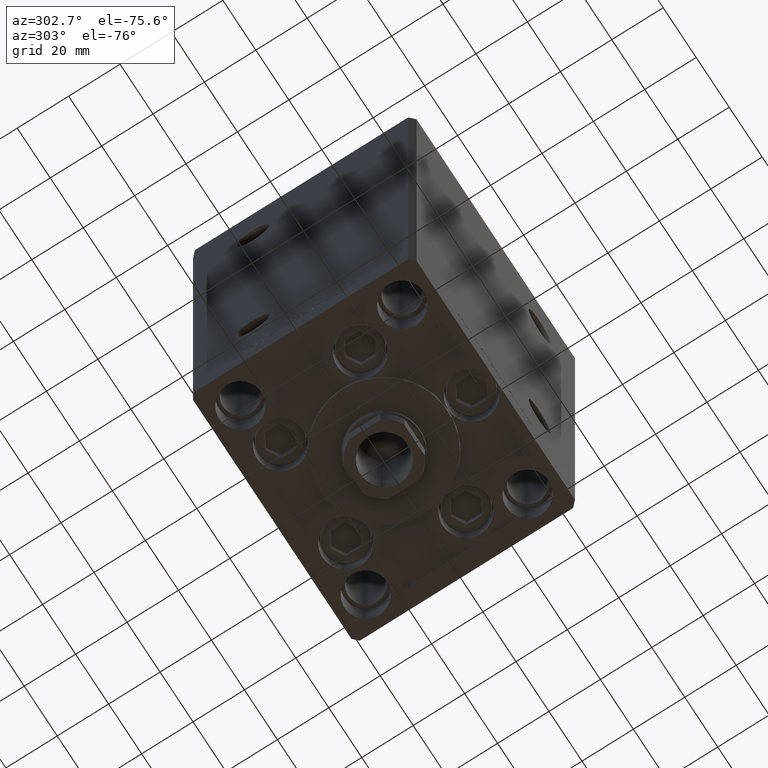
[diagram: clean part render]
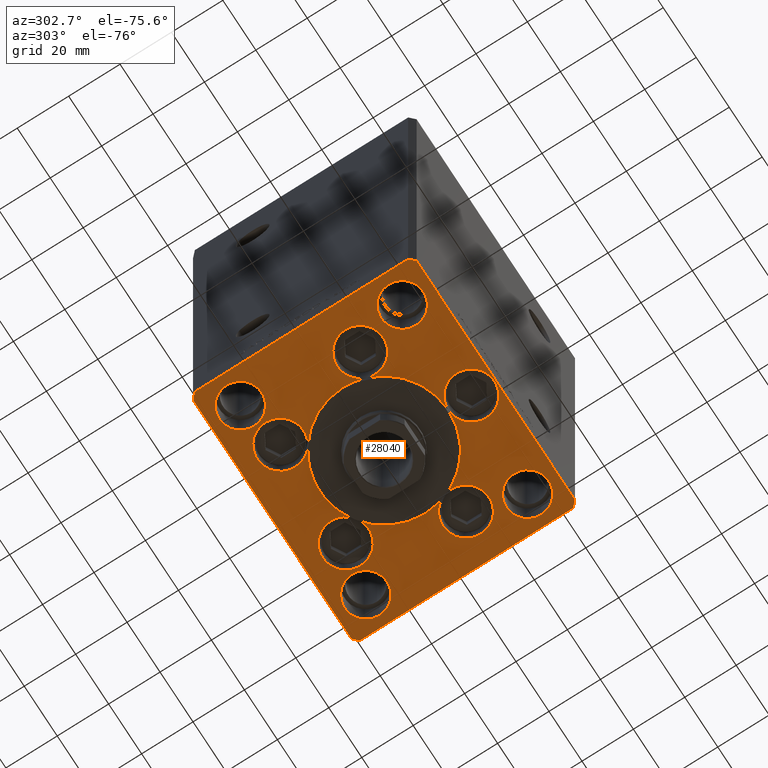
[diagram: same view with one face highlighted and labeled with its STEP entity id]
A machine part, auxiliary view. The second image highlights one B-rep face of the part: STEP entity #28040.
In plain terms, the highlighted planar face has unit normal (0, 0, -1).
Its self-contained STEP definition (entity closure, byte-faithful):
#228 = CARTESIAN_POINT ( 'NONE',  ( -50.00000000000000711, 41.49999999999999289, 0.000000000000000000 ) ) ;
#287 = VERTEX_POINT ( 'NONE', #18116 ) ;
#293 = CIRCLE ( 'NONE', #21447, 8.999999999999998224 ) ;
#330 = AXIS2_PLACEMENT_3D ( 'NONE', #29958, #20427, #39982 ) ;
#395 = AXIS2_PLACEMENT_3D ( 'NONE', #5434, #32104, #20926 ) ;
#409 = DIRECTION ( 'NONE',  ( 0.000000000000000000, 0.000000000000000000, 1.000000000000000000 ) ) ;
#425 = AXIS2_PLACEMENT_3D ( 'NONE', #39524, #17166, #43582 ) ;
#472 = AXIS2_PLACEMENT_3D ( 'NONE', #49892, #30829, #35147 ) ;
#539 = ORIENTED_EDGE ( 'NONE', *, *, #16660, .T. ) ;
#650 = CIRCLE ( 'NONE', #36305, 9.000000000000001776 ) ;
#720 = CARTESIAN_POINT ( 'NONE',  ( 50.00000000000000000, -41.49999999999992895, 0.000000000000000000 ) ) ;
#798 = EDGE_CURVE ( 'NONE', #15097, #5583, #650, .T. ) ;
#996 = CARTESIAN_POINT ( 'NONE',  ( -38.00000000000000000, 31.50000000000000000, 0.000000000000000000 ) ) ;
#1111 = CARTESIAN_POINT ( 'NONE',  ( 14.57402977045128623, 20.31249999999998579, 0.000000000000000000 ) ) ;
#1197 = VERTEX_POINT ( 'NONE', #1882 ) ;
#1245 = CARTESIAN_POINT ( 'NONE',  ( -48.00000000000000000, 43.49999999999997158, 0.000000000000000000 ) ) ;
#1278 = FACE_BOUND ( 'NONE', #35104, .T. ) ;
#1734 = DIRECTION ( 'NONE',  ( 0.000000000000000000, 0.000000000000000000, 1.000000000000000000 ) ) ;
#1762 = CARTESIAN_POINT ( 'NONE',  ( -25.00000000000000000, -6.938893903907228378E-15, 0.000000000000000000 ) ) ;
#1839 = ORIENTED_EDGE ( 'NONE', *, *, #18612, .F. ) ;
#1882 = CARTESIAN_POINT ( 'NONE',  ( 47.99999999999999289, 43.50000000000000000, 0.000000000000000000 ) ) ;
#1955 = CARTESIAN_POINT ( 'NONE',  ( 38.00000000000000711, -31.50000000000000711, 0.000000000000000000 ) ) ;
#2171 = DIRECTION ( 'NONE',  ( 1.000000000000000000, 0.000000000000000000, 0.000000000000000000 ) ) ;
#2518 = DIRECTION ( 'NONE',  ( 1.000000000000000000, 0.000000000000000000, 0.000000000000000000 ) ) ;
#2654 = CARTESIAN_POINT ( 'NONE',  ( -50.00000000000000000, -41.50000000000004263, 0.000000000000000000 ) ) ;
#2740 = AXIS2_PLACEMENT_3D ( 'NONE', #43446, #41129, #21819 ) ;
#2756 = ORIENTED_EDGE ( 'NONE', *, *, #18411, .T. ) ;
#2917 = VERTEX_POINT ( 'NONE', #2654 ) ;
#2969 = ORIENTED_EDGE ( 'NONE', *, *, #13932, .F. ) ;
#3465 = DIRECTION ( 'NONE',  ( 1.000000000000000000, 0.000000000000000000, 0.000000000000000000 ) ) ;
#3544 = DIRECTION ( 'NONE',  ( 0.000000000000000000, 0.000000000000000000, 1.000000000000000000 ) ) ;
#3600 = AXIS2_PLACEMENT_3D ( 'NONE', #20012, #8587, #39552 ) ;
#3870 = DIRECTION ( 'NONE',  ( 0.000000000000000000, 0.000000000000000000, 1.000000000000000000 ) ) ;
#3879 = CARTESIAN_POINT ( 'NONE',  ( 0.000000000000000000, -34.00000000000000000, 0.000000000000000000 ) ) ;
#4088 = EDGE_CURVE ( 'NONE', #46002, #6306, #35470, .T. ) ;
#4151 = CARTESIAN_POINT ( 'NONE',  ( -29.75000000000000000, 31.50000000000000000, 0.000000000000000000 ) ) ;
#4483 = EDGE_CURVE ( 'NONE', #6306, #9022, #42808, .T. ) ;
#4912 = EDGE_CURVE ( 'NONE', #36984, #43052, #26547, .T. ) ;
#5033 = CARTESIAN_POINT ( 'NONE',  ( -10.82068048781375147, 27.62499999999998934, 0.000000000000000000 ) ) ;
#5434 = CARTESIAN_POINT ( 'NONE',  ( 0.000000000000000000, -6.938893903907228378E-15, 0.000000000000000000 ) ) ;
#5576 = FACE_BOUND ( 'NONE', #35745, .T. ) ;
#5583 = VERTEX_POINT ( 'NONE', #18358 ) ;
#5611 = CARTESIAN_POINT ( 'NONE',  ( -29.75000000000000711, -31.50000000000000711, 0.000000000000000000 ) ) ;
#5638 = CARTESIAN_POINT ( 'NONE',  ( -50.00000000000000000, -41.50000000000004263, 0.000000000000000000 ) ) ;
#5688 = ORIENTED_EDGE ( 'NONE', *, *, #38407, .F. ) ;
#5814 = FACE_BOUND ( 'NONE', #26633, .T. ) ;
#6221 = DIRECTION ( 'NONE',  ( 0.000000000000000000, 0.000000000000000000, 1.000000000000000000 ) ) ;
#6306 = VERTEX_POINT ( 'NONE', #42102 ) ;
#6424 = DIRECTION ( 'NONE',  ( 1.000000000000000000, 1.156482317317871331E-15, 0.000000000000000000 ) ) ;
#6514 = ORIENTED_EDGE ( 'NONE', *, *, #18755, .F. ) ;
#6604 = CARTESIAN_POINT ( 'NONE',  ( -38.00000000000000000, 31.50000000000000000, 0.000000000000000000 ) ) ;
#6693 = EDGE_CURVE ( 'NONE', #5583, #28128, #15290, .T. ) ;
#6868 = VERTEX_POINT ( 'NONE', #42979 ) ;
#6901 = CIRCLE ( 'NONE', #10964, 8.999999999999998224 ) ;
#6918 = CARTESIAN_POINT ( 'NONE',  ( 19.82068048781374969, 27.62499999999998934, 0.000000000000000000 ) ) ;
#6952 = CARTESIAN_POINT ( 'NONE',  ( 50.00000000000000000, 41.50000000000000711, 0.000000000000000000 ) ) ;
#7017 = VECTOR ( 'NONE', #14902, 1000.000000000000114 ) ;
#7226 = DIRECTION ( 'NONE',  ( 1.000000000000000000, 0.000000000000000000, 0.000000000000000000 ) ) ;
#7528 = DIRECTION ( 'NONE',  ( 0.000000000000000000, 0.000000000000000000, 1.000000000000000000 ) ) ;
#7878 = VERTEX_POINT ( 'NONE', #39672 ) ;
#8587 = DIRECTION ( 'NONE',  ( 0.000000000000000000, 0.000000000000000000, 1.000000000000000000 ) ) ;
#8960 = DIRECTION ( 'NONE',  ( -1.000000000000000000, -2.891205793294678326E-16, 0.000000000000000000 ) ) ;
#9022 = VERTEX_POINT ( 'NONE', #1762 ) ;
#9218 = CIRCLE ( 'NONE', #46512, 8.250000000000000000 ) ;
#9323 = AXIS2_PLACEMENT_3D ( 'NONE', #20892, #36377, #13523 ) ;
#9473 = ORIENTED_EDGE ( 'NONE', *, *, #45252, .T. ) ;
#9573 = EDGE_CURVE ( 'NONE', #28128, #39621, #13786, .T. ) ;
#9990 = CIRCLE ( 'NONE', #18110, 25.00000000000000000 ) ;
#10092 = DIRECTION ( 'NONE',  ( 1.000000000000000000, 0.000000000000000000, 0.000000000000000000 ) ) ;
#10331 = CARTESIAN_POINT ( 'NONE',  ( 48.00000000000000711, -43.49999999999992184, 0.000000000000000000 ) ) ;
#10751 = AXIS2_PLACEMENT_3D ( 'NONE', #29308, #45578, #10796 ) ;
#10796 = DIRECTION ( 'NONE',  ( 1.000000000000000000, 0.000000000000000000, 0.000000000000000000 ) ) ;
#10897 = DIRECTION ( 'NONE',  ( 0.000000000000000000, 0.000000000000000000, 1.000000000000000000 ) ) ;
#10964 = AXIS2_PLACEMENT_3D ( 'NONE', #45901, #11116, #17732 ) ;
#11033 = VECTOR ( 'NONE', #15086, 999.9999999999998863 ) ;
#11116 = DIRECTION ( 'NONE',  ( 0.000000000000000000, 0.000000000000000000, 1.000000000000000000 ) ) ;
#11140 = VERTEX_POINT ( 'NONE', #4151 ) ;
#11346 = CIRCLE ( 'NONE', #44576, 8.249999999999992895 ) ;
#11558 = CIRCLE ( 'NONE', #20476, 9.000000000000001776 ) ;
#11581 = CARTESIAN_POINT ( 'NONE',  ( 0.000000000000000000, -34.00000000000000000, 0.000000000000000000 ) ) ;
#11642 = VECTOR ( 'NONE', #42882, 1000.000000000000000 ) ;
#11713 = DIRECTION ( 'NONE',  ( 0.000000000000000000, 0.000000000000000000, 1.000000000000000000 ) ) ;
#11786 = VERTEX_POINT ( 'NONE', #20948 ) ;
#12374 = ORIENTED_EDGE ( 'NONE', *, *, #28359, .T. ) ;
#12436 = AXIS2_PLACEMENT_3D ( 'NONE', #20111, #32272, #12988 ) ;
#12471 = CIRCLE ( 'NONE', #330, 8.250000000000000000 ) ;
#12584 = CIRCLE ( 'NONE', #45001, 8.249999999999992895 ) ;
#12708 = PLANE ( 'NONE',  #19132 ) ;
#12844 = ORIENTED_EDGE ( 'NONE', *, *, #25332, .F. ) ;
#12952 = DIRECTION ( 'NONE',  ( 1.000000000000000000, 0.000000000000000000, 0.000000000000000000 ) ) ;
#12974 = VERTEX_POINT ( 'NONE', #36069 ) ;
#12988 = DIRECTION ( 'NONE',  ( 1.000000000000000000, 0.000000000000000000, 0.000000000000000000 ) ) ;
#13088 = VERTEX_POINT ( 'NONE', #46203 ) ;
#13306 = CIRCLE ( 'NONE', #31963, 8.250000000000000000 ) ;
#13503 = CARTESIAN_POINT ( 'NONE',  ( 47.99999999999999289, 43.50000000000000000, 0.000000000000000000 ) ) ;
#13523 = DIRECTION ( 'NONE',  ( 1.000000000000000000, 0.000000000000000000, 0.000000000000000000 ) ) ;
#13786 = CIRCLE ( 'NONE', #42186, 9.000000000000000000 ) ;
#13796 = CARTESIAN_POINT ( 'NONE',  ( -48.00000000000000000, 43.49999999999997158, 0.000000000000000000 ) ) ;
#13919 = VERTEX_POINT ( 'NONE', #39838 ) ;
#13932 = EDGE_CURVE ( 'NONE', #7878, #11140, #38352, .T. ) ;
#14634 = CARTESIAN_POINT ( 'NONE',  ( 50.00000000000000000, 41.50000000000000711, 0.000000000000000000 ) ) ;
#14752 = CARTESIAN_POINT ( 'NONE',  ( -32.05550741379015989, -11.33333333333332860, 0.000000000000000000 ) ) ;
#14778 = EDGE_CURVE ( 'NONE', #11140, #7878, #9218, .T. ) ;
#14902 = DIRECTION ( 'NONE',  ( 0.7071067811865474617, 0.7071067811865474617, 0.000000000000000000 ) ) ;
#15086 = DIRECTION ( 'NONE',  ( -0.7071067811865512365, 0.7071067811865439090, 0.000000000000000000 ) ) ;
#15093 = VERTEX_POINT ( 'NONE', #15682 ) ;
#15097 = VERTEX_POINT ( 'NONE', #49707 ) ;
#15148 = CIRCLE ( 'NONE', #43513, 9.000000000000001776 ) ;
#15279 = ORIENTED_EDGE ( 'NONE', *, *, #23577, .F. ) ;
#15290 = CIRCLE ( 'NONE', #27459, 25.00000000000000000 ) ;
#15682 = CARTESIAN_POINT ( 'NONE',  ( 41.05550741379015989, -11.33333333333332860, 0.000000000000000000 ) ) ;
#16173 = AXIS2_PLACEMENT_3D ( 'NONE', #20787, #36266, #24839 ) ;
#16660 = EDGE_CURVE ( 'NONE', #1197, #26510, #36853, .T. ) ;
#16811 = EDGE_CURVE ( 'NONE', #24124, #15093, #29510, .T. ) ;
#17166 = DIRECTION ( 'NONE',  ( 0.000000000000000000, 0.000000000000000000, 1.000000000000000000 ) ) ;
#17263 = FACE_BOUND ( 'NONE', #19628, .T. ) ;
#17283 = VECTOR ( 'NONE', #6424, 1000.000000000000000 ) ;
#17366 = VECTOR ( 'NONE', #8960, 1000.000000000000000 ) ;
#17455 = DIRECTION ( 'NONE',  ( 1.000000000000000000, 0.000000000000000000, 0.000000000000000000 ) ) ;
#17636 = AXIS2_PLACEMENT_3D ( 'NONE', #23191, #19127, #30272 ) ;
#17732 = DIRECTION ( 'NONE',  ( 1.000000000000000000, 0.000000000000000000, 0.000000000000000000 ) ) ;
#17801 = VERTEX_POINT ( 'NONE', #24932 ) ;
#18110 = AXIS2_PLACEMENT_3D ( 'NONE', #21467, #25765, #2171 ) ;
#18116 = CARTESIAN_POINT ( 'NONE',  ( 29.75000000000001066, -31.50000000000000711, 0.000000000000000000 ) ) ;
#18272 = CARTESIAN_POINT ( 'NONE',  ( 0.000000000000000000, -34.00000000000000000, 0.000000000000000000 ) ) ;
#18291 = AXIS2_PLACEMENT_3D ( 'NONE', #3879, #28226, #27975 ) ;
#18358 = CARTESIAN_POINT ( 'NONE',  ( -23.57022603955158502, -8.333333333333332149, 0.000000000000000000 ) ) ;
#18411 = EDGE_CURVE ( 'NONE', #32588, #21257, #23086, .T. ) ;
#18612 = EDGE_CURVE ( 'NONE', #43052, #31975, #293, .T. ) ;
#18631 = ORIENTED_EDGE ( 'NONE', *, *, #33688, .F. ) ;
#18755 = EDGE_CURVE ( 'NONE', #24828, #17801, #21336, .T. ) ;
#19127 = DIRECTION ( 'NONE',  ( 0.000000000000000000, 0.000000000000000000, 1.000000000000000000 ) ) ;
#19132 = AXIS2_PLACEMENT_3D ( 'NONE', #24626, #36049, #12952 ) ;
#19239 = DIRECTION ( 'NONE',  ( 1.000000000000000000, 0.000000000000000000, 0.000000000000000000 ) ) ;
#19314 = ORIENTED_EDGE ( 'NONE', *, *, #4912, .F. ) ;
#19615 = EDGE_CURVE ( 'NONE', #13088, #36035, #12471, .T. ) ;
#19628 = EDGE_LOOP ( 'NONE', ( #12844, #22593 ) ) ;
#20012 = CARTESIAN_POINT ( 'NONE',  ( 32.05550741379015989, -11.33333333333332860, 0.000000000000000000 ) ) ;
#20111 = CARTESIAN_POINT ( 'NONE',  ( 38.00000000000000000, 31.50000000000000000, 0.000000000000000000 ) ) ;
#20348 = CARTESIAN_POINT ( 'NONE',  ( 46.25000000000000000, -31.50000000000000711, 0.000000000000000000 ) ) ;
#20427 = DIRECTION ( 'NONE',  ( 0.000000000000000000, 0.000000000000000000, 1.000000000000000000 ) ) ;
#20476 = AXIS2_PLACEMENT_3D ( 'NONE', #26255, #41756, #33870 ) ;
#20573 = CIRCLE ( 'NONE', #2740, 8.999999999999998224 ) ;
#20577 = VERTEX_POINT ( 'NONE', #44533 ) ;
#20715 = EDGE_CURVE ( 'NONE', #17801, #24828, #13306, .T. ) ;
#20787 = CARTESIAN_POINT ( 'NONE',  ( -32.05550741379015989, -11.33333333333332860, 0.000000000000000000 ) ) ;
#20892 = CARTESIAN_POINT ( 'NONE',  ( -19.82068048781374969, 27.62499999999998934, 0.000000000000000000 ) ) ;
#20926 = DIRECTION ( 'NONE',  ( 1.000000000000000000, 0.000000000000000000, 0.000000000000000000 ) ) ;
#20948 = CARTESIAN_POINT ( 'NONE',  ( 9.000000000000000000, -34.00000000000000000, 0.000000000000000000 ) ) ;
#21257 = VERTEX_POINT ( 'NONE', #14634 ) ;
#21336 = CIRCLE ( 'NONE', #12436, 8.250000000000000000 ) ;
#21447 = AXIS2_PLACEMENT_3D ( 'NONE', #6918, #3870, #50078 ) ;
#21467 = CARTESIAN_POINT ( 'NONE',  ( 0.000000000000000000, -6.938893903907228378E-15, 0.000000000000000000 ) ) ;
#21574 = ORIENTED_EDGE ( 'NONE', *, *, #6693, .F. ) ;
#21781 = EDGE_CURVE ( 'NONE', #6306, #37820, #43349, .T. ) ;
#21786 = ORIENTED_EDGE ( 'NONE', *, *, #29208, .F. ) ;
#21819 = DIRECTION ( 'NONE',  ( 1.000000000000000000, 0.000000000000000000, 0.000000000000000000 ) ) ;
#22240 = ORIENTED_EDGE ( 'NONE', *, *, #16811, .F. ) ;
#22295 = EDGE_CURVE ( 'NONE', #34622, #287, #12584, .T. ) ;
#22593 = ORIENTED_EDGE ( 'NONE', *, *, #19615, .F. ) ;
#22955 = LINE ( 'NONE', #6952, #11033 ) ;
#23047 = DIRECTION ( 'NONE',  ( 0.000000000000000000, 0.000000000000000000, 1.000000000000000000 ) ) ;
#23086 = LINE ( 'NONE', #720, #11642 ) ;
#23191 = CARTESIAN_POINT ( 'NONE',  ( 0.000000000000000000, -6.938893903907228378E-15, 0.000000000000000000 ) ) ;
#23197 = CIRCLE ( 'NONE', #27244, 9.000000000000000000 ) ;
#23577 = EDGE_CURVE ( 'NONE', #15093, #13919, #48300, .T. ) ;
#23751 = ORIENTED_EDGE ( 'NONE', *, *, #21781, .F. ) ;
#23881 = VECTOR ( 'NONE', #28975, 1000.000000000000000 ) ;
#24124 = VERTEX_POINT ( 'NONE', #32021 ) ;
#24130 = CARTESIAN_POINT ( 'NONE',  ( -19.82068048781374969, 27.62499999999998934, 0.000000000000000000 ) ) ;
#24182 = CARTESIAN_POINT ( 'NONE',  ( -50.00000000000000711, 41.49999999999999289, 0.000000000000000000 ) ) ;
#24194 = ORIENTED_EDGE ( 'NONE', *, *, #26589, .F. ) ;
#24395 = ORIENTED_EDGE ( 'NONE', *, *, #25896, .F. ) ;
#24580 = AXIS2_PLACEMENT_3D ( 'NONE', #996, #1734, #47948 ) ;
#24626 = CARTESIAN_POINT ( 'NONE',  ( 0.000000000000000000, 0.000000000000000000, 0.000000000000000000 ) ) ;
#24828 = VERTEX_POINT ( 'NONE', #49247 ) ;
#24839 = DIRECTION ( 'NONE',  ( 1.000000000000000000, 0.000000000000000000, 0.000000000000000000 ) ) ;
#24932 = CARTESIAN_POINT ( 'NONE',  ( 46.25000000000000000, 31.50000000000000000, 0.000000000000000000 ) ) ;
#24937 = LINE ( 'NONE', #5638, #23881 ) ;
#24945 = VECTOR ( 'NONE', #46197, 1000.000000000000000 ) ;
#25094 = ORIENTED_EDGE ( 'NONE', *, *, #22295, .F. ) ;
#25332 = EDGE_CURVE ( 'NONE', #36035, #13088, #38523, .T. ) ;
#25713 = CARTESIAN_POINT ( 'NONE',  ( 0.000000000000000000, -6.938893903907228378E-15, 0.000000000000000000 ) ) ;
#25765 = DIRECTION ( 'NONE',  ( 0.000000000000000000, 0.000000000000000000, 1.000000000000000000 ) ) ;
#25896 = EDGE_CURVE ( 'NONE', #12974, #43052, #6901, .T. ) ;
#25907 = DIRECTION ( 'NONE',  ( 1.000000000000000000, 0.000000000000000000, 0.000000000000000000 ) ) ;
#26255 = CARTESIAN_POINT ( 'NONE',  ( 32.05550741379015989, -11.33333333333332860, 0.000000000000000000 ) ) ;
#26469 = DIRECTION ( 'NONE',  ( 1.000000000000000000, 0.000000000000000000, 0.000000000000000000 ) ) ;
#26510 = VERTEX_POINT ( 'NONE', #13796 ) ;
#26547 = CIRCLE ( 'NONE', #41158, 25.00000000000000000 ) ;
#26589 = EDGE_CURVE ( 'NONE', #39621, #11786, #31262, .T. ) ;
#26633 = EDGE_LOOP ( 'NONE', ( #25094, #28487 ) ) ;
#26853 = CARTESIAN_POINT ( 'NONE',  ( -28.82068048781374969, 27.62499999999998934, 0.000000000000000000 ) ) ;
#26923 = DIRECTION ( 'NONE',  ( 0.000000000000000000, 0.000000000000000000, 1.000000000000000000 ) ) ;
#27244 = AXIS2_PLACEMENT_3D ( 'NONE', #24130, #11713, #30737 ) ;
#27291 = CARTESIAN_POINT ( 'NONE',  ( -9.000000000000000000, -34.00000000000000000, 0.000000000000000000 ) ) ;
#27327 = ORIENTED_EDGE ( 'NONE', *, *, #44589, .F. ) ;
#27459 = AXIS2_PLACEMENT_3D ( 'NONE', #25713, #29771, #26469 ) ;
#27909 = ORIENTED_EDGE ( 'NONE', *, *, #36887, .F. ) ;
#27975 = DIRECTION ( 'NONE',  ( 1.000000000000000000, 0.000000000000000000, 0.000000000000000000 ) ) ;
#27985 = EDGE_CURVE ( 'NONE', #37820, #46002, #23197, .T. ) ;
#28040 = ADVANCED_FACE ( 'NONE', ( #1278, #32726, #5576, #17263, #5814, #36300 ), #12708, .T. ) ;
#28079 = ORIENTED_EDGE ( 'NONE', *, *, #4088, .F. ) ;
#28128 = VERTEX_POINT ( 'NONE', #42565 ) ;
#28226 = DIRECTION ( 'NONE',  ( 0.000000000000000000, 0.000000000000000000, 1.000000000000000000 ) ) ;
#28244 = ORIENTED_EDGE ( 'NONE', *, *, #32516, .T. ) ;
#28359 = EDGE_CURVE ( 'NONE', #21257, #1197, #22955, .T. ) ;
#28487 = ORIENTED_EDGE ( 'NONE', *, *, #47913, .F. ) ;
#28884 = CIRCLE ( 'NONE', #31336, 9.000000000000000000 ) ;
#28927 = EDGE_CURVE ( 'NONE', #11786, #28128, #28884, .T. ) ;
#28975 = DIRECTION ( 'NONE',  ( 0.7071067811865487940, -0.7071067811865463515, 0.000000000000000000 ) ) ;
#29152 = EDGE_CURVE ( 'NONE', #6868, #32588, #49420, .T. ) ;
#29208 = EDGE_CURVE ( 'NONE', #5583, #41115, #15148, .T. ) ;
#29308 = CARTESIAN_POINT ( 'NONE',  ( 0.000000000000000000, -6.938893903907228378E-15, 0.000000000000000000 ) ) ;
#29361 = DIRECTION ( 'NONE',  ( 0.000000000000000000, 0.000000000000000000, 1.000000000000000000 ) ) ;
#29510 = CIRCLE ( 'NONE', #3600, 9.000000000000001776 ) ;
#29771 = DIRECTION ( 'NONE',  ( 0.000000000000000000, 0.000000000000000000, 1.000000000000000000 ) ) ;
#29778 = DIRECTION ( 'NONE',  ( 0.000000000000000000, 0.000000000000000000, 1.000000000000000000 ) ) ;
#29958 = CARTESIAN_POINT ( 'NONE',  ( -38.00000000000000711, -31.50000000000000711, 0.000000000000000000 ) ) ;
#30272 = DIRECTION ( 'NONE',  ( 1.000000000000000000, 0.000000000000000000, 0.000000000000000000 ) ) ;
#30281 = DIRECTION ( 'NONE',  ( 1.000000000000000000, 0.000000000000000000, 0.000000000000000000 ) ) ;
#30737 = DIRECTION ( 'NONE',  ( 1.000000000000000000, 0.000000000000000000, 0.000000000000000000 ) ) ;
#30829 = DIRECTION ( 'NONE',  ( 0.000000000000000000, 0.000000000000000000, 1.000000000000000000 ) ) ;
#31195 = CIRCLE ( 'NONE', #395, 25.00000000000000000 ) ;
#31262 = CIRCLE ( 'NONE', #18291, 9.000000000000000000 ) ;
#31336 = AXIS2_PLACEMENT_3D ( 'NONE', #18272, #10897, #2518 ) ;
#31452 = DIRECTION ( 'NONE',  ( 1.000000000000000000, 0.000000000000000000, 0.000000000000000000 ) ) ;
#31484 = EDGE_CURVE ( 'NONE', #9022, #5583, #42765, .T. ) ;
#31570 = VERTEX_POINT ( 'NONE', #24182 ) ;
#31963 = AXIS2_PLACEMENT_3D ( 'NONE', #45029, #29778, #30281 ) ;
#31975 = VERTEX_POINT ( 'NONE', #39857 ) ;
#32021 = CARTESIAN_POINT ( 'NONE',  ( 23.05550741379015633, -11.33333333333332682, 0.000000000000000000 ) ) ;
#32104 = DIRECTION ( 'NONE',  ( 0.000000000000000000, 0.000000000000000000, 1.000000000000000000 ) ) ;
#32202 = CARTESIAN_POINT ( 'NONE',  ( -19.82068048781374969, 27.62499999999998934, 0.000000000000000000 ) ) ;
#32272 = DIRECTION ( 'NONE',  ( 0.000000000000000000, 0.000000000000000000, 1.000000000000000000 ) ) ;
#32516 = EDGE_CURVE ( 'NONE', #31570, #2917, #50002, .T. ) ;
#32588 = VERTEX_POINT ( 'NONE', #42140 ) ;
#32629 = CIRCLE ( 'NONE', #10751, 25.00000000000000000 ) ;
#32726 = FACE_BOUND ( 'NONE', #47017, .T. ) ;
#33019 = AXIS2_PLACEMENT_3D ( 'NONE', #45566, #6221, #7226 ) ;
#33648 = EDGE_CURVE ( 'NONE', #26510, #31570, #40568, .T. ) ;
#33688 = EDGE_CURVE ( 'NONE', #41115, #15097, #46977, .T. ) ;
#33870 = DIRECTION ( 'NONE',  ( 1.000000000000000000, 0.000000000000000000, 0.000000000000000000 ) ) ;
#34479 = ORIENTED_EDGE ( 'NONE', *, *, #33648, .T. ) ;
#34622 = VERTEX_POINT ( 'NONE', #20348 ) ;
#35104 = EDGE_LOOP ( 'NONE', ( #38303, #24395, #5688, #1839, #19314, #27909, #15279, #22240, #43370, #27327, #47303, #24194, #49886, #21574, #46000, #18631, #21786, #41933, #36992, #28079, #36331, #23751 ) ) ;
#35147 = DIRECTION ( 'NONE',  ( 1.000000000000000000, 0.000000000000000000, 0.000000000000000000 ) ) ;
#35470 = CIRCLE ( 'NONE', #43597, 9.000000000000000000 ) ;
#35745 = EDGE_LOOP ( 'NONE', ( #40598, #2969 ) ) ;
#36035 = VERTEX_POINT ( 'NONE', #5611 ) ;
#36049 = DIRECTION ( 'NONE',  ( -0.000000000000000000, 0.000000000000000000, 1.000000000000000000 ) ) ;
#36069 = CARTESIAN_POINT ( 'NONE',  ( 10.82068048781375147, 27.62499999999998934, 0.000000000000000000 ) ) ;
#36266 = DIRECTION ( 'NONE',  ( 0.000000000000000000, 0.000000000000000000, 1.000000000000000000 ) ) ;
#36300 = FACE_OUTER_BOUND ( 'NONE', #37575, .T. ) ;
#36305 = AXIS2_PLACEMENT_3D ( 'NONE', #14752, #26923, #25907 ) ;
#36331 = ORIENTED_EDGE ( 'NONE', *, *, #27985, .F. ) ;
#36377 = DIRECTION ( 'NONE',  ( 0.000000000000000000, 0.000000000000000000, 1.000000000000000000 ) ) ;
#36645 = LINE ( 'NONE', #45017, #17283 ) ;
#36853 = LINE ( 'NONE', #13503, #17366 ) ;
#36887 = EDGE_CURVE ( 'NONE', #13919, #36984, #31195, .T. ) ;
#36984 = VERTEX_POINT ( 'NONE', #45780 ) ;
#36992 = ORIENTED_EDGE ( 'NONE', *, *, #4483, .F. ) ;
#37326 = DIRECTION ( 'NONE',  ( 1.000000000000000000, 0.000000000000000000, 0.000000000000000000 ) ) ;
#37575 = EDGE_LOOP ( 'NONE', ( #43828, #9473, #47918, #2756, #12374, #539, #34479, #28244 ) ) ;
#37820 = VERTEX_POINT ( 'NONE', #5033 ) ;
#38054 = VECTOR ( 'NONE', #47704, 1000.000000000000000 ) ;
#38303 = ORIENTED_EDGE ( 'NONE', *, *, #44702, .F. ) ;
#38352 = CIRCLE ( 'NONE', #24580, 8.250000000000000000 ) ;
#38407 = EDGE_CURVE ( 'NONE', #31975, #12974, #20573, .T. ) ;
#38523 = CIRCLE ( 'NONE', #425, 8.250000000000000000 ) ;
#39251 = DIRECTION ( 'NONE',  ( 1.000000000000000000, 0.000000000000000000, 0.000000000000000000 ) ) ;
#39524 = CARTESIAN_POINT ( 'NONE',  ( -38.00000000000000711, -31.50000000000000711, 0.000000000000000000 ) ) ;
#39552 = DIRECTION ( 'NONE',  ( 1.000000000000000000, 0.000000000000000000, 0.000000000000000000 ) ) ;
#39621 = VERTEX_POINT ( 'NONE', #27291 ) ;
#39672 = CARTESIAN_POINT ( 'NONE',  ( -46.25000000000000000, 31.50000000000000000, 0.000000000000000000 ) ) ;
#39838 = CARTESIAN_POINT ( 'NONE',  ( 23.57022603955158502, -8.333333333333332149, 0.000000000000000000 ) ) ;
#39857 = CARTESIAN_POINT ( 'NONE',  ( 28.82068048781374969, 27.62499999999998934, 0.000000000000000000 ) ) ;
#39982 = DIRECTION ( 'NONE',  ( 1.000000000000000000, 0.000000000000000000, 0.000000000000000000 ) ) ;
#40568 = LINE ( 'NONE', #1245, #38054 ) ;
#40598 = ORIENTED_EDGE ( 'NONE', *, *, #14778, .F. ) ;
#40628 = CARTESIAN_POINT ( 'NONE',  ( 0.000000000000000000, -6.938893903907228378E-15, 0.000000000000000000 ) ) ;
#40795 = DIRECTION ( 'NONE',  ( 0.000000000000000000, 0.000000000000000000, 1.000000000000000000 ) ) ;
#40897 = EDGE_CURVE ( 'NONE', #2917, #20577, #24937, .T. ) ;
#41115 = VERTEX_POINT ( 'NONE', #45991 ) ;
#41129 = DIRECTION ( 'NONE',  ( 0.000000000000000000, 0.000000000000000000, 1.000000000000000000 ) ) ;
#41143 = DIRECTION ( 'NONE',  ( 0.000000000000000000, 0.000000000000000000, 1.000000000000000000 ) ) ;
#41158 = AXIS2_PLACEMENT_3D ( 'NONE', #40628, #23047, #19239 ) ;
#41756 = DIRECTION ( 'NONE',  ( 0.000000000000000000, 0.000000000000000000, 1.000000000000000000 ) ) ;
#41933 = ORIENTED_EDGE ( 'NONE', *, *, #31484, .F. ) ;
#42102 = CARTESIAN_POINT ( 'NONE',  ( -14.57402977045128978, 20.31249999999999289, 0.000000000000000000 ) ) ;
#42140 = CARTESIAN_POINT ( 'NONE',  ( 50.00000000000000000, -41.49999999999992895, 0.000000000000000000 ) ) ;
#42186 = AXIS2_PLACEMENT_3D ( 'NONE', #11581, #409, #3465 ) ;
#42391 = CARTESIAN_POINT ( 'NONE',  ( 38.00000000000000711, -31.50000000000000711, 0.000000000000000000 ) ) ;
#42565 = CARTESIAN_POINT ( 'NONE',  ( 0.000000000000000000, -25.00000000000000000, 0.000000000000000000 ) ) ;
#42765 = CIRCLE ( 'NONE', #17636, 25.00000000000000000 ) ;
#42808 = CIRCLE ( 'NONE', #33019, 25.00000000000000000 ) ;
#42882 = DIRECTION ( 'NONE',  ( 0.000000000000000000, 1.000000000000000000, 0.000000000000000000 ) ) ;
#42979 = CARTESIAN_POINT ( 'NONE',  ( 48.00000000000000711, -43.49999999999992184, 0.000000000000000000 ) ) ;
#43034 = EDGE_CURVE ( 'NONE', #13919, #24124, #11558, .T. ) ;
#43052 = VERTEX_POINT ( 'NONE', #1111 ) ;
#43349 = CIRCLE ( 'NONE', #9323, 9.000000000000000000 ) ;
#43370 = ORIENTED_EDGE ( 'NONE', *, *, #43034, .F. ) ;
#43446 = CARTESIAN_POINT ( 'NONE',  ( 19.82068048781374969, 27.62499999999998934, 0.000000000000000000 ) ) ;
#43513 = AXIS2_PLACEMENT_3D ( 'NONE', #46875, #7528, #39251 ) ;
#43582 = DIRECTION ( 'NONE',  ( 1.000000000000000000, 0.000000000000000000, 0.000000000000000000 ) ) ;
#43597 = AXIS2_PLACEMENT_3D ( 'NONE', #32202, #29361, #10092 ) ;
#43828 = ORIENTED_EDGE ( 'NONE', *, *, #40897, .T. ) ;
#44533 = CARTESIAN_POINT ( 'NONE',  ( -48.00000000000000711, -43.50000000000002842, 0.000000000000000000 ) ) ;
#44576 = AXIS2_PLACEMENT_3D ( 'NONE', #1955, #40795, #17455 ) ;
#44589 = EDGE_CURVE ( 'NONE', #28128, #13919, #32629, .T. ) ;
#44702 = EDGE_CURVE ( 'NONE', #43052, #6306, #9990, .T. ) ;
#45001 = AXIS2_PLACEMENT_3D ( 'NONE', #42391, #3544, #31452 ) ;
#45017 = CARTESIAN_POINT ( 'NONE',  ( -48.00000000000000711, -43.50000000000002842, 0.000000000000000000 ) ) ;
#45029 = CARTESIAN_POINT ( 'NONE',  ( 38.00000000000000000, 31.50000000000000000, 0.000000000000000000 ) ) ;
#45252 = EDGE_CURVE ( 'NONE', #20577, #6868, #36645, .T. ) ;
#45566 = CARTESIAN_POINT ( 'NONE',  ( 0.000000000000000000, -6.938893903907228378E-15, 0.000000000000000000 ) ) ;
#45578 = DIRECTION ( 'NONE',  ( 0.000000000000000000, 0.000000000000000000, 1.000000000000000000 ) ) ;
#45780 = CARTESIAN_POINT ( 'NONE',  ( 25.00000000000000000, -3.877276906038844941E-15, 0.000000000000000000 ) ) ;
#45901 = CARTESIAN_POINT ( 'NONE',  ( 19.82068048781374969, 27.62499999999998934, 0.000000000000000000 ) ) ;
#45991 = CARTESIAN_POINT ( 'NONE',  ( -41.05550741379015989, -11.33333333333332682, 0.000000000000000000 ) ) ;
#46000 = ORIENTED_EDGE ( 'NONE', *, *, #798, .F. ) ;
#46002 = VERTEX_POINT ( 'NONE', #26853 ) ;
#46197 = DIRECTION ( 'NONE',  ( 8.360113137237620037E-17, -1.000000000000000000, 0.000000000000000000 ) ) ;
#46203 = CARTESIAN_POINT ( 'NONE',  ( -46.25000000000000711, -31.50000000000000711, 0.000000000000000000 ) ) ;
#46512 = AXIS2_PLACEMENT_3D ( 'NONE', #6604, #41143, #37326 ) ;
#46875 = CARTESIAN_POINT ( 'NONE',  ( -32.05550741379015989, -11.33333333333332860, 0.000000000000000000 ) ) ;
#46977 = CIRCLE ( 'NONE', #16173, 9.000000000000001776 ) ;
#47017 = EDGE_LOOP ( 'NONE', ( #47263, #6514 ) ) ;
#47263 = ORIENTED_EDGE ( 'NONE', *, *, #20715, .F. ) ;
#47303 = ORIENTED_EDGE ( 'NONE', *, *, #28927, .F. ) ;
#47704 = DIRECTION ( 'NONE',  ( -0.7071067811865536790, -0.7071067811865414665, 0.000000000000000000 ) ) ;
#47913 = EDGE_CURVE ( 'NONE', #287, #34622, #11346, .T. ) ;
#47918 = ORIENTED_EDGE ( 'NONE', *, *, #29152, .T. ) ;
#47948 = DIRECTION ( 'NONE',  ( 1.000000000000000000, 0.000000000000000000, 0.000000000000000000 ) ) ;
#48300 = CIRCLE ( 'NONE', #472, 9.000000000000001776 ) ;
#49247 = CARTESIAN_POINT ( 'NONE',  ( 29.74999999999999645, 31.50000000000000000, 0.000000000000000000 ) ) ;
#49420 = LINE ( 'NONE', #10331, #7017 ) ;
#49707 = CARTESIAN_POINT ( 'NONE',  ( -23.05550741379015633, -11.33333333333332860, 0.000000000000000000 ) ) ;
#49886 = ORIENTED_EDGE ( 'NONE', *, *, #9573, .F. ) ;
#49892 = CARTESIAN_POINT ( 'NONE',  ( 32.05550741379015989, -11.33333333333332860, 0.000000000000000000 ) ) ;
#50002 = LINE ( 'NONE', #228, #24945 ) ;
#50078 = DIRECTION ( 'NONE',  ( 1.000000000000000000, 0.000000000000000000, 0.000000000000000000 ) ) ;